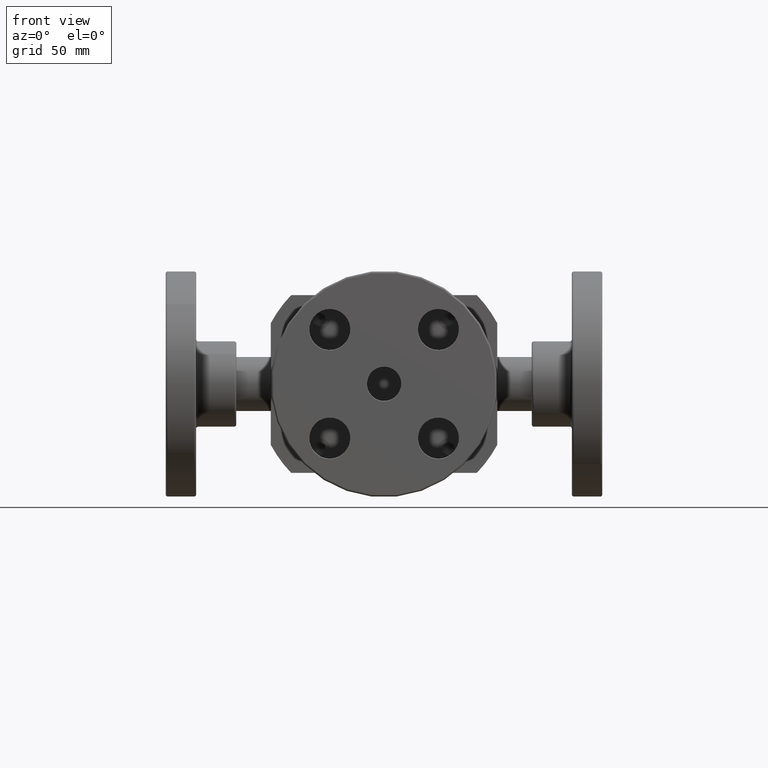
[diagram: clean part render]
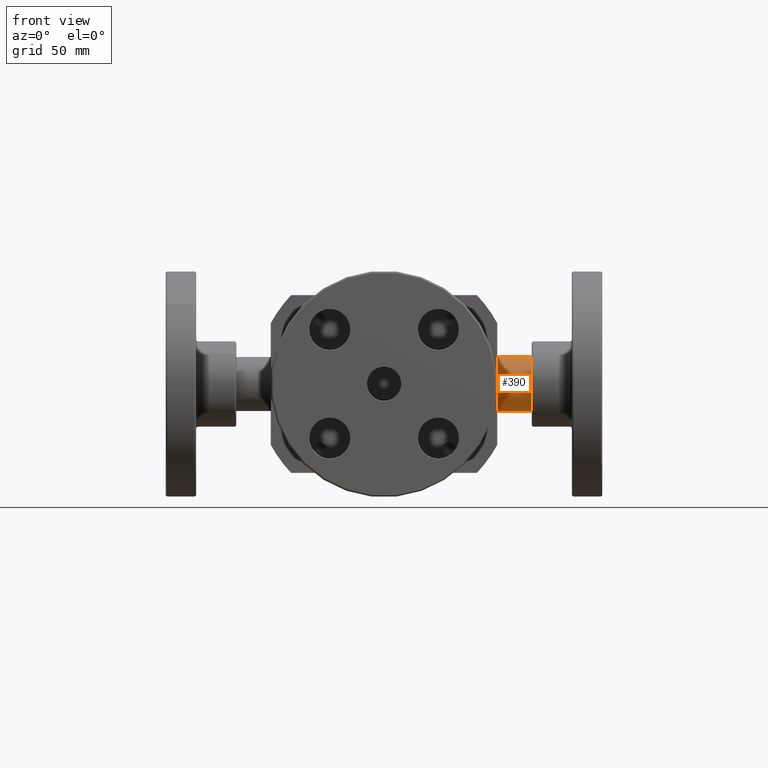
[diagram: same view with one face highlighted and labeled with its STEP entity id]
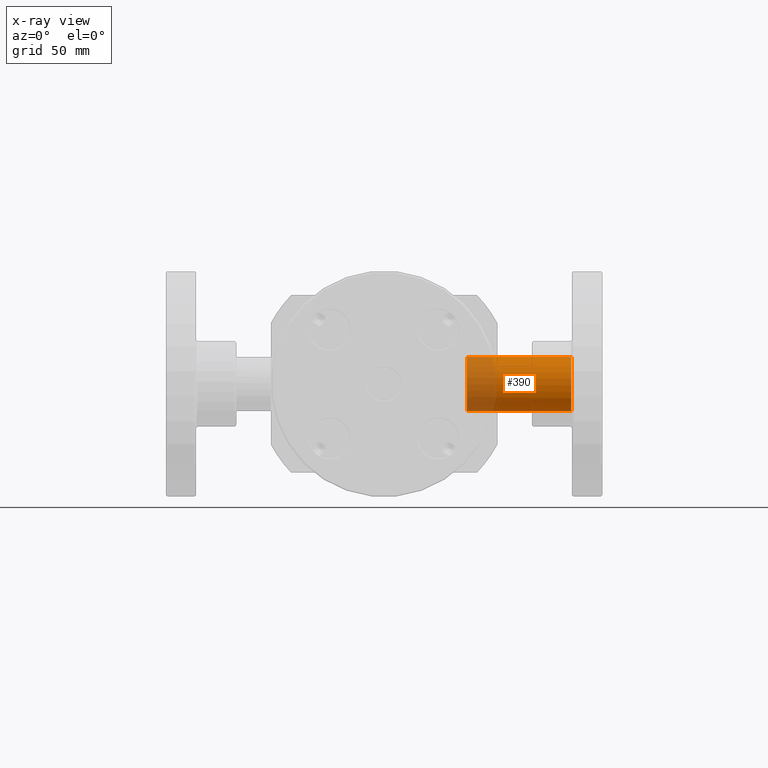
[diagram: x-ray of the same camera — body ghosted, the highlighted face saturated]
A machine part, front view. The second image highlights one B-rep face of the part: STEP entity #390.
The next image is the same camera in x-ray: the body ghosted, the highlighted face saturated — about 27% of this face is hidden behind the body in this view.
In plain terms, the highlighted face is a freeform B-spline surface patch.
Its self-contained STEP definition (entity closure, byte-faithful):
#342=CARTESIAN_POINT('',(1.283333333333468,1.379294444553738,0.351886427269740));
#343=CARTESIAN_POINT('',(2.895000000000003,1.379294444553738,0.351886427269740));
#344=CARTESIAN_POINT('',(1.283333333333468,1.731180871823724,0.122591982716094));
#345=CARTESIAN_POINT('',(2.895000000000003,1.731180871823724,0.122591982716094));
#346=CARTESIAN_POINT('',(1.283333333333468,1.501886427270078,-0.229294444553892));
#347=CARTESIAN_POINT('',(2.895000000000003,1.501886427270078,-0.229294444553892));
#348=CARTESIAN_POINT('',(1.283333333333468,1.272591982716432,-0.581180871823878));
#349=CARTESIAN_POINT('',(2.895000000000003,1.272591982716431,-0.581180871823878));
#350=CARTESIAN_POINT('',(1.283333333333468,0.920705555446446,-0.351886427270232));
#351=CARTESIAN_POINT('',(2.895000000000003,0.920705555446446,-0.351886427270232));
#352=CARTESIAN_POINT('',(1.283333333333468,0.568819128176461,-0.122591982716586));
#353=CARTESIAN_POINT('',(2.895000000000003,0.568819128176460,-0.122591982716586));
#354=CARTESIAN_POINT('',(1.283333333333468,0.798113572730107,0.229294444553400));
#355=CARTESIAN_POINT('',(2.895000000000003,0.798113572730106,0.229294444553400));
#356=CARTESIAN_POINT('',(1.283333333333468,1.027408017283753,0.581180871823385));
#357=CARTESIAN_POINT('',(2.895000000000003,1.027408017283752,0.581180871823386));
#358=CARTESIAN_POINT('',(1.283333333333468,1.379294444553738,0.351886427269740));
#359=CARTESIAN_POINT('',(2.895000000000003,1.379294444553738,0.351886427269740));
#367=(BOUNDED_SURFACE()B_SPLINE_SURFACE(1,2,((#342,#344,#346,#348,#350,#352,#354,#356,#358),(#343,#345,#347,#349,#351,#353,#355,#357,#359)),.UNSPECIFIED.,.F.,.T.,.U.)B_SPLINE_SURFACE_WITH_KNOTS((2,2),(3,2,2,2,3),(-1.492063480158275,2.345238107143000),(0.0,0.659734457253857,1.319468914507713,1.979203371761570,2.638937829015426),.UNSPECIFIED.)GEOMETRIC_REPRESENTATION_ITEM()RATIONAL_B_SPLINE_SURFACE(((1.0,0.707106781186548,1.0,0.707106781186548,1.0,0.707106781186548,1.0,0.707106781186548,1.0),(1.0,0.707106781186548,1.0,0.707106781186548,1.0,0.707106781186548,1.0,0.707106781186548,1.0)))REPRESENTATION_ITEM('')SURFACE());
#368=CARTESIAN_POINT('',(2.895000000000003,1.379294444553738,0.351886427269740));
#369=VERTEX_POINT('',#368);
#370=CARTESIAN_POINT('',(2.895000000000003,1.150000000000092,-2.460517E-013));
#371=DIRECTION('',(1.0,-3.818178E-018,-5.859562E-018));
#372=DIRECTION('',(-6.993779E-018,-0.545939153699157,-0.837824826833300));
#373=AXIS2_PLACEMENT_3D('',#370,#371,#372);
#374=CIRCLE('',#373,0.420000000000000);
#375=EDGE_CURVE('',#369,#369,#374,.T.);
#376=ORIENTED_EDGE('',*,*,#375,.F.);
#377=EDGE_LOOP('',(#376));
#378=FACE_OUTER_BOUND('',#377,.T.);
#379=CARTESIAN_POINT('',(1.283333333333468,1.379294444553738,0.351886427269740));
#380=VERTEX_POINT('',#379);
#381=CARTESIAN_POINT('',(1.283333333333468,1.150000000000092,-2.462490E-013));
#382=DIRECTION('',(-1.0,3.818178E-018,5.859562E-018));
#383=DIRECTION('',(-6.993779E-018,-0.545939153699157,-0.837824826833300));
#384=AXIS2_PLACEMENT_3D('',#381,#382,#383);
#385=CIRCLE('',#384,0.420000000000000);
#386=EDGE_CURVE('',#380,#380,#385,.T.);
#387=ORIENTED_EDGE('',*,*,#386,.F.);
#388=EDGE_LOOP('',(#387));
#389=FACE_BOUND('',#388,.T.);
#390=ADVANCED_FACE('',(#378,#389),#367,.T.);